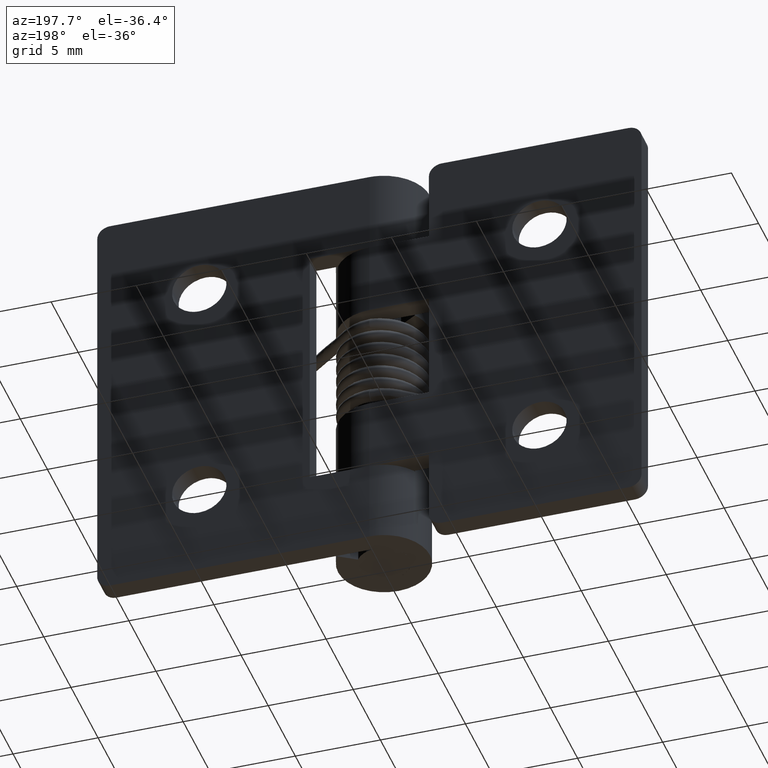
[diagram: clean part render]
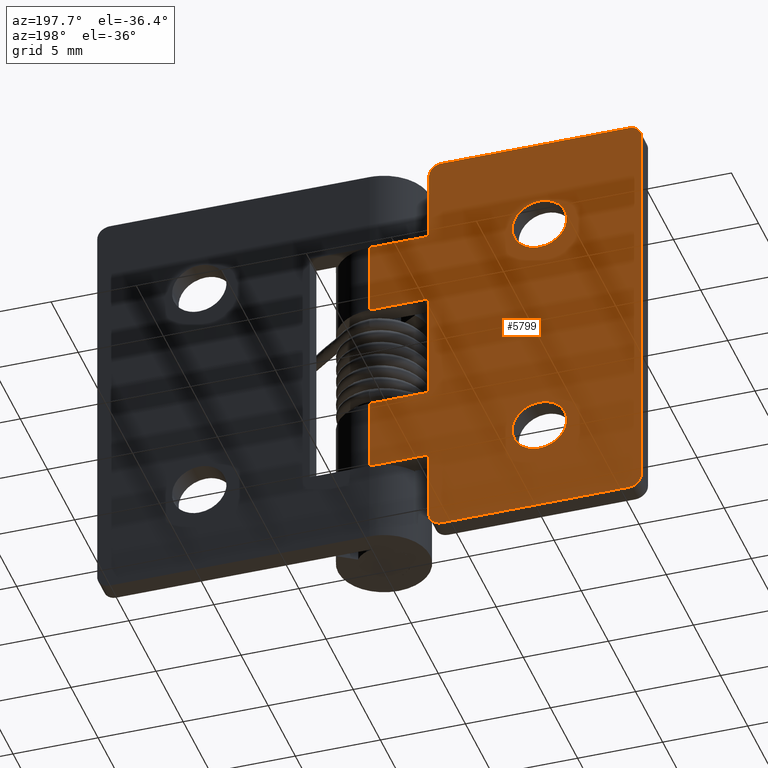
[diagram: same view with one face highlighted and labeled with its STEP entity id]
A machine part, auxiliary view. The second image highlights one B-rep face of the part: STEP entity #5799.
In plain terms, the highlighted face is a freeform B-spline surface patch.
Its self-contained STEP definition (entity closure, byte-faithful):
#4549=CARTESIAN_POINT('',(-11.588822242180971,2.700005000000000,19.311137224542691));
#4550=VERTEX_POINT('',#4549);
#4556=CARTESIAN_POINT('',(-10.000006999999901,2.700005000000000,21.099992000000199));
#4557=VERTEX_POINT('',#4556);
#4558=CARTESIAN_POINT('',(-11.588822242180969,2.700005000000000,19.311137224542691));
#4559=CARTESIAN_POINT('',(-11.600006999999897,2.700005000000000,19.405233408550380));
#4560=CARTESIAN_POINT('',(-11.600006999999900,2.700005000000000,19.499992000000201));
#4561=CARTESIAN_POINT('',(-11.600006999999898,2.700005000000000,21.099992000000206));
#4562=CARTESIAN_POINT('',(-10.000006999999901,2.700005000000000,21.099992000000199));
#4570=(BOUNDED_CURVE()B_SPLINE_CURVE(2,(#4558,#4559,#4560,#4561,#4562),.UNSPECIFIED.,.F.,.U.)B_SPLINE_CURVE_WITH_KNOTS((3,2,3),(0.229562473514219,0.250000000000000,0.500000000000000),.UNSPECIFIED.)CURVE()GEOMETRIC_REPRESENTATION_ITEM()RATIONAL_B_SPLINE_CURVE((0.956026754185093,0.976055948331978,1.0,0.707106781186548,1.0))REPRESENTATION_ITEM(''));
#4571=EDGE_CURVE('',#4550,#4557,#4570,.T.);
#4573=CARTESIAN_POINT('',(-8.402991322528347,2.700005000000000,19.597669663312150));
#4574=VERTEX_POINT('',#4573);
#4575=CARTESIAN_POINT('',(-10.000006999999901,2.700005000000000,21.099992000000199));
#4576=CARTESIAN_POINT('',(-8.494877293056886,2.700005000000000,21.099992000000203));
#4577=CARTESIAN_POINT('',(-8.402991322528347,2.700005000000000,19.597669663312157));
#4585=(BOUNDED_CURVE()B_SPLINE_CURVE(2,(#4575,#4576,#4577),.UNSPECIFIED.,.F.,.U.)B_SPLINE_CURVE_WITH_KNOTS((3,3),(0.500000000000000,0.739332962229828),.UNSPECIFIED.)CURVE()GEOMETRIC_REPRESENTATION_ITEM()RATIONAL_B_SPLINE_CURVE((1.0,0.719603993297389,0.976072041647183))REPRESENTATION_ITEM(''));
#4586=EDGE_CURVE('',#4557,#4574,#4585,.T.);
#4660=CARTESIAN_POINT('',(-10.000006999999901,2.700005000000000,17.899992000000200));
#4661=VERTEX_POINT('',#4660);
#4662=CARTESIAN_POINT('',(-8.402991322528347,2.700005000000000,19.597669663312157));
#4663=CARTESIAN_POINT('',(-8.400006999999899,2.700005000000000,19.548876421334285));
#4664=CARTESIAN_POINT('',(-8.400006999999899,2.700005000000000,19.499992000000201));
#4665=CARTESIAN_POINT('',(-8.400006999999901,2.700005000000000,17.899992000000196));
#4666=CARTESIAN_POINT('',(-10.000006999999901,2.700005000000000,17.899992000000200));
#4674=(BOUNDED_CURVE()B_SPLINE_CURVE(2,(#4662,#4663,#4664,#4665,#4666),.UNSPECIFIED.,.F.,.U.)B_SPLINE_CURVE_WITH_KNOTS((3,2,3),(0.739332962229828,0.750000000000000,1.0),.UNSPECIFIED.)CURVE()GEOMETRIC_REPRESENTATION_ITEM()RATIONAL_B_SPLINE_CURVE((0.976072041647183,0.987502787889158,1.0,0.707106781186548,1.0))REPRESENTATION_ITEM(''));
#4675=EDGE_CURVE('',#4574,#4661,#4674,.T.);
#4677=CARTESIAN_POINT('',(-10.000006999999901,2.700005000000000,17.899992000000200));
#4678=CARTESIAN_POINT('',(-11.421086241510022,2.700005000000000,17.899992000000200));
#4679=CARTESIAN_POINT('',(-11.588822242180969,2.700005000000000,19.311137224542691));
#4687=(BOUNDED_CURVE()B_SPLINE_CURVE(2,(#4677,#4678,#4679),.UNSPECIFIED.,.F.,.U.)B_SPLINE_CURVE_WITH_KNOTS((3,3),(0.0,0.229562473514219),.UNSPECIFIED.)CURVE()GEOMETRIC_REPRESENTATION_ITEM()RATIONAL_B_SPLINE_CURVE((1.0,0.731050832854570,0.956026754185093))REPRESENTATION_ITEM(''));
#4688=EDGE_CURVE('',#4661,#4550,#4687,.T.);
#4735=CARTESIAN_POINT('',(-11.588822242180971,2.700005000000000,5.311145224542686));
#4736=VERTEX_POINT('',#4735);
#4742=CARTESIAN_POINT('',(-10.000006999999901,2.700005000000000,7.100000000000200));
#4743=VERTEX_POINT('',#4742);
#4744=CARTESIAN_POINT('',(-11.588822242180971,2.700005000000000,5.311145224542686));
#4745=CARTESIAN_POINT('',(-11.600006999999897,2.700005000000000,5.405241408550374));
#4746=CARTESIAN_POINT('',(-11.600006999999900,2.700005000000000,5.500000000000200));
#4747=CARTESIAN_POINT('',(-11.600006999999898,2.700005000000000,7.100000000000200));
#4748=CARTESIAN_POINT('',(-10.000006999999901,2.700005000000000,7.100000000000200));
#4756=(BOUNDED_CURVE()B_SPLINE_CURVE(2,(#4744,#4745,#4746,#4747,#4748),.UNSPECIFIED.,.F.,.U.)B_SPLINE_CURVE_WITH_KNOTS((3,2,3),(0.229562473514219,0.250000000000000,0.500000000000000),.UNSPECIFIED.)CURVE()GEOMETRIC_REPRESENTATION_ITEM()RATIONAL_B_SPLINE_CURVE((0.956026754185092,0.976055948331978,1.0,0.707106781186548,1.0))REPRESENTATION_ITEM(''));
#4757=EDGE_CURVE('',#4736,#4743,#4756,.T.);
#4759=CARTESIAN_POINT('',(-8.402991322528349,2.700005000000000,5.597677663312155));
#4760=VERTEX_POINT('',#4759);
#4761=CARTESIAN_POINT('',(-10.000006999999901,2.700005000000000,7.100000000000200));
#4762=CARTESIAN_POINT('',(-8.494877293056886,2.700005000000000,7.100000000000199));
#4763=CARTESIAN_POINT('',(-8.402991322528349,2.700005000000000,5.597677663312155));
#4771=(BOUNDED_CURVE()B_SPLINE_CURVE(2,(#4761,#4762,#4763),.UNSPECIFIED.,.F.,.U.)B_SPLINE_CURVE_WITH_KNOTS((3,3),(0.500000000000000,0.739332962229828),.UNSPECIFIED.)CURVE()GEOMETRIC_REPRESENTATION_ITEM()RATIONAL_B_SPLINE_CURVE((1.0,0.719603993297389,0.976072041647183))REPRESENTATION_ITEM(''));
#4772=EDGE_CURVE('',#4743,#4760,#4771,.T.);
#4846=CARTESIAN_POINT('',(-10.000006999999901,2.700005000000000,3.900000000000200));
#4847=VERTEX_POINT('',#4846);
#4848=CARTESIAN_POINT('',(-8.402991322528349,2.700005000000000,5.597677663312155));
#4849=CARTESIAN_POINT('',(-8.400006999999899,2.700005000000000,5.548884421334284));
#4850=CARTESIAN_POINT('',(-8.400006999999899,2.700005000000000,5.500000000000200));
#4851=CARTESIAN_POINT('',(-8.400006999999901,2.700005000000000,3.900000000000200));
#4852=CARTESIAN_POINT('',(-10.000006999999901,2.700005000000000,3.900000000000200));
#4860=(BOUNDED_CURVE()B_SPLINE_CURVE(2,(#4848,#4849,#4850,#4851,#4852),.UNSPECIFIED.,.F.,.U.)B_SPLINE_CURVE_WITH_KNOTS((3,2,3),(0.739332962229828,0.750000000000000,1.0),.UNSPECIFIED.)CURVE()GEOMETRIC_REPRESENTATION_ITEM()RATIONAL_B_SPLINE_CURVE((0.976072041647182,0.987502787889158,1.0,0.707106781186548,1.0))REPRESENTATION_ITEM(''));
#4861=EDGE_CURVE('',#4760,#4847,#4860,.T.);
#4863=CARTESIAN_POINT('',(-10.000006999999901,2.700005000000000,3.900000000000200));
#4864=CARTESIAN_POINT('',(-11.421086241510020,2.700004999999999,3.900000000000200));
#4865=CARTESIAN_POINT('',(-11.588822242180969,2.700005000000000,5.311145224542686));
#4873=(BOUNDED_CURVE()B_SPLINE_CURVE(2,(#4863,#4864,#4865),.UNSPECIFIED.,.F.,.U.)B_SPLINE_CURVE_WITH_KNOTS((3,3),(0.0,0.229562473514219),.UNSPECIFIED.)CURVE()GEOMETRIC_REPRESENTATION_ITEM()RATIONAL_B_SPLINE_CURVE((1.0,0.731050832854570,0.956026754185093))REPRESENTATION_ITEM(''));
#4874=EDGE_CURVE('',#4847,#4736,#4873,.T.);
#4911=CARTESIAN_POINT('',(-3.500000000000000,2.700005000000000,24.249984999999999));
#4912=VERTEX_POINT('',#4911);
#4918=CARTESIAN_POINT('',(-4.250000000000000,2.700005000000000,24.999984999999999));
#4919=VERTEX_POINT('',#4918);
#4920=CARTESIAN_POINT('',(-3.500000000000000,2.700005000000000,24.249984999999999));
#4921=CARTESIAN_POINT('',(-3.499999999999999,2.700005000000000,24.999984999999995));
#4922=CARTESIAN_POINT('',(-4.250000000000000,2.700005000000000,24.999984999999999));
#4930=(BOUNDED_CURVE()B_SPLINE_CURVE(2,(#4920,#4921,#4922),.UNSPECIFIED.,.F.,.U.)CURVE()GEOMETRIC_REPRESENTATION_ITEM()QUASI_UNIFORM_CURVE()RATIONAL_B_SPLINE_CURVE((1.0,0.707106781186548,1.0))REPRESENTATION_ITEM(''));
#4931=EDGE_CURVE('',#4912,#4919,#4930,.T.);
#4972=CARTESIAN_POINT('',(-4.250000000000000,2.700005000000000,0.0));
#4973=VERTEX_POINT('',#4972);
#4979=CARTESIAN_POINT('',(-3.500000000000000,2.700005000000000,0.750000000000000));
#4980=VERTEX_POINT('',#4979);
#4981=CARTESIAN_POINT('',(-4.250000000000000,2.700005000000000,0.0));
#4982=CARTESIAN_POINT('',(-3.499999999999999,2.700005000000000,0.0));
#4983=CARTESIAN_POINT('',(-3.500000000000000,2.700005000000000,0.750000000000000));
#4991=(BOUNDED_CURVE()B_SPLINE_CURVE(2,(#4981,#4982,#4983),.UNSPECIFIED.,.F.,.U.)CURVE()GEOMETRIC_REPRESENTATION_ITEM()QUASI_UNIFORM_CURVE()RATIONAL_B_SPLINE_CURVE((1.0,0.707106781186548,1.0))REPRESENTATION_ITEM(''));
#4992=EDGE_CURVE('',#4973,#4980,#4991,.T.);
#5016=CARTESIAN_POINT('',(-15.250008000000101,2.700005000000000,24.999984999999999));
#5017=VERTEX_POINT('',#5016);
#5018=CARTESIAN_POINT('',(-16.000008000000101,2.700005000000000,24.249984999999999));
#5019=VERTEX_POINT('',#5018);
#5020=CARTESIAN_POINT('',(-15.250008000000101,2.700005000000000,24.999984999999999));
#5021=CARTESIAN_POINT('',(-16.000008000000097,2.700005000000000,24.999984999999995));
#5022=CARTESIAN_POINT('',(-16.000008000000101,2.700005000000000,24.249984999999999));
#5030=(BOUNDED_CURVE()B_SPLINE_CURVE(2,(#5020,#5021,#5022),.UNSPECIFIED.,.F.,.U.)CURVE()GEOMETRIC_REPRESENTATION_ITEM()QUASI_UNIFORM_CURVE()RATIONAL_B_SPLINE_CURVE((1.0,0.707106781186548,1.0))REPRESENTATION_ITEM(''));
#5031=EDGE_CURVE('',#5017,#5019,#5030,.T.);
#5077=CARTESIAN_POINT('',(-16.000008000000101,2.700005000000000,0.750000000000000));
#5078=VERTEX_POINT('',#5077);
#5079=CARTESIAN_POINT('',(-15.250008000000101,2.700005000000000,0.0));
#5080=VERTEX_POINT('',#5079);
#5081=CARTESIAN_POINT('',(-16.000008000000101,2.700005000000000,0.750000000000000));
#5082=CARTESIAN_POINT('',(-16.000008000000097,2.700005000000000,0.0));
#5083=CARTESIAN_POINT('',(-15.250008000000101,2.700005000000000,0.0));
#5091=(BOUNDED_CURVE()B_SPLINE_CURVE(2,(#5081,#5082,#5083),.UNSPECIFIED.,.F.,.U.)CURVE()GEOMETRIC_REPRESENTATION_ITEM()QUASI_UNIFORM_CURVE()RATIONAL_B_SPLINE_CURVE((1.0,0.707106781186548,1.0))REPRESENTATION_ITEM(''));
#5092=EDGE_CURVE('',#5078,#5080,#5091,.T.);
#5131=CARTESIAN_POINT('',(0.0,2.700005000000000,9.249992000000001));
#5132=VERTEX_POINT('',#5131);
#5152=CARTESIAN_POINT('',(-3.500000000000000,2.700005000000000,9.249992000000001));
#5153=VERTEX_POINT('',#5152);
#5154=CARTESIAN_POINT('',(0.0,2.700005000000000,9.249992000000001));
#5155=CARTESIAN_POINT('',(-3.500000000000000,2.700005000000000,9.249992000000001));
#5156=QUASI_UNIFORM_CURVE('',1,(#5154,#5155),.UNSPECIFIED.,.F.,.U.);
#5157=EDGE_CURVE('',#5132,#5153,#5156,.T.);
#5207=CARTESIAN_POINT('',(0.0,2.700005000000000,15.749992000000001));
#5208=VERTEX_POINT('',#5207);
#5265=CARTESIAN_POINT('',(-3.500000000000000,2.700005000000000,15.749992000000001));
#5266=VERTEX_POINT('',#5265);
#5272=CARTESIAN_POINT('',(-3.500000000000000,2.700005000000000,15.749992000000001));
#5273=CARTESIAN_POINT('',(0.0,2.700005000000000,15.749992000000001));
#5274=QUASI_UNIFORM_CURVE('',1,(#5272,#5273),.UNSPECIFIED.,.F.,.U.);
#5275=EDGE_CURVE('',#5266,#5208,#5274,.T.);
#5291=CARTESIAN_POINT('',(-3.500000000000000,2.700005000000000,9.249992000000001));
#5292=CARTESIAN_POINT('',(-3.500000000000000,2.700005000000000,15.749992000000001));
#5293=QUASI_UNIFORM_CURVE('',1,(#5291,#5292),.UNSPECIFIED.,.F.,.U.);
#5294=EDGE_CURVE('',#5153,#5266,#5293,.T.);
#5305=CARTESIAN_POINT('',(-3.500000000000000,2.700005000000000,20.099997999999999));
#5306=VERTEX_POINT('',#5305);
#5307=CARTESIAN_POINT('',(-3.500000000000000,2.700005000000000,24.249984999999999));
#5308=CARTESIAN_POINT('',(-3.500000000000000,2.700005000000000,20.099997999999999));
#5309=QUASI_UNIFORM_CURVE('',1,(#5307,#5308),.UNSPECIFIED.,.F.,.U.);
#5310=EDGE_CURVE('',#4912,#5306,#5309,.T.);
#5333=CARTESIAN_POINT('',(0.0,2.700005000000000,20.099997999999999));
#5334=VERTEX_POINT('',#5333);
#5335=CARTESIAN_POINT('',(-3.500000000000000,2.700005000000000,20.099997999999999));
#5336=CARTESIAN_POINT('',(0.0,2.700005000000000,20.099997999999999));
#5337=QUASI_UNIFORM_CURVE('',1,(#5335,#5336),.UNSPECIFIED.,.F.,.U.);
#5338=EDGE_CURVE('',#5306,#5334,#5337,.T.);
#5405=CARTESIAN_POINT('',(0.0,2.700005000000000,4.899994000000000));
#5406=VERTEX_POINT('',#5405);
#5461=CARTESIAN_POINT('',(-3.500000000000000,2.700005000000000,4.899994000000000));
#5462=VERTEX_POINT('',#5461);
#5468=CARTESIAN_POINT('',(0.0,2.700005000000000,4.899994000000000));
#5469=CARTESIAN_POINT('',(-3.500000000000000,2.700005000000000,4.899994000000000));
#5470=QUASI_UNIFORM_CURVE('',1,(#5468,#5469),.UNSPECIFIED.,.F.,.U.);
#5471=EDGE_CURVE('',#5406,#5462,#5470,.T.);
#5607=CARTESIAN_POINT('',(0.0,2.700005000000000,4.899994000000000));
#5608=CARTESIAN_POINT('',(0.0,2.700005000000000,9.249992000000001));
#5609=QUASI_UNIFORM_CURVE('',1,(#5607,#5608),.UNSPECIFIED.,.F.,.U.);
#5610=EDGE_CURVE('',#5406,#5132,#5609,.T.);
#5638=CARTESIAN_POINT('',(0.0,2.700005000000000,15.749992000000001));
#5639=CARTESIAN_POINT('',(0.0,2.700005000000000,20.099997999999999));
#5640=QUASI_UNIFORM_CURVE('',1,(#5638,#5639),.UNSPECIFIED.,.F.,.U.);
#5641=EDGE_CURVE('',#5208,#5334,#5640,.T.);
#5660=CARTESIAN_POINT('',(-15.250008000000101,2.700005000000000,0.0));
#5661=CARTESIAN_POINT('',(-4.250000000000000,2.700005000000000,0.0));
#5662=QUASI_UNIFORM_CURVE('',1,(#5660,#5661),.UNSPECIFIED.,.F.,.U.);
#5663=EDGE_CURVE('',#5080,#4973,#5662,.T.);
#5679=CARTESIAN_POINT('',(-15.250008000000101,2.700005000000000,24.999984999999999));
#5680=CARTESIAN_POINT('',(-4.250000000000000,2.700005000000000,24.999984999999999));
#5681=QUASI_UNIFORM_CURVE('',1,(#5679,#5680),.UNSPECIFIED.,.F.,.U.);
#5682=EDGE_CURVE('',#5017,#4919,#5681,.T.);
#5694=CARTESIAN_POINT('',(-16.000008000000101,2.700005000000000,0.750000000000000));
#5695=CARTESIAN_POINT('',(-16.000008000000101,2.700005000000000,24.249984999999999));
#5696=QUASI_UNIFORM_CURVE('',1,(#5694,#5695),.UNSPECIFIED.,.F.,.U.);
#5697=EDGE_CURVE('',#5078,#5019,#5696,.T.);
#5714=CARTESIAN_POINT('',(-3.500000000000000,2.700005000000000,4.899994000000000));
#5715=CARTESIAN_POINT('',(-3.500000000000000,2.700005000000000,0.750000000000000));
#5716=QUASI_UNIFORM_CURVE('',1,(#5714,#5715),.UNSPECIFIED.,.F.,.U.);
#5717=EDGE_CURVE('',#5462,#4980,#5716,.T.);
#5764=CARTESIAN_POINT('',(-16.799208068195728,2.700005000000000,26.248733967613209));
#5765=CARTESIAN_POINT('',(-16.799208068195728,2.700005000000000,-1.248749861682338));
#5766=CARTESIAN_POINT('',(0.799200783451724,2.700005000000000,26.248733967613209));
#5767=CARTESIAN_POINT('',(0.799200783451724,2.700005000000000,-1.248749861682338));
#5768=B_SPLINE_SURFACE_WITH_KNOTS('',1,1,((#5764,#5766),(#5765,#5767)),.UNSPECIFIED.,.F.,.F.,.U.,(2,2),(2,2),(0.0,27.497483829295540),(0.0,17.598408851647449),.UNSPECIFIED.);
#5769=ORIENTED_EDGE('',*,*,#4931,.F.);
#5770=ORIENTED_EDGE('',*,*,#5310,.T.);
#5771=ORIENTED_EDGE('',*,*,#5338,.T.);
#5772=ORIENTED_EDGE('',*,*,#5641,.F.);
#5773=ORIENTED_EDGE('',*,*,#5275,.F.);
#5774=ORIENTED_EDGE('',*,*,#5294,.F.);
#5775=ORIENTED_EDGE('',*,*,#5157,.F.);
#5776=ORIENTED_EDGE('',*,*,#5610,.F.);
#5777=ORIENTED_EDGE('',*,*,#5471,.T.);
#5778=ORIENTED_EDGE('',*,*,#5717,.T.);
#5779=ORIENTED_EDGE('',*,*,#4992,.F.);
#5780=ORIENTED_EDGE('',*,*,#5663,.F.);
#5781=ORIENTED_EDGE('',*,*,#5092,.F.);
#5782=ORIENTED_EDGE('',*,*,#5697,.T.);
#5783=ORIENTED_EDGE('',*,*,#5031,.F.);
#5784=ORIENTED_EDGE('',*,*,#5682,.T.);
#5785=EDGE_LOOP('',(#5769,#5770,#5771,#5772,#5773,#5774,#5775,#5776,#5777,#5778,#5779,#5780,#5781,#5782,#5783,#5784));
#5786=FACE_OUTER_BOUND('',#5785,.T.);
#5787=ORIENTED_EDGE('',*,*,#4772,.F.);
#5788=ORIENTED_EDGE('',*,*,#4757,.F.);
#5789=ORIENTED_EDGE('',*,*,#4874,.F.);
#5790=ORIENTED_EDGE('',*,*,#4861,.F.);
#5791=EDGE_LOOP('',(#5787,#5788,#5789,#5790));
#5792=FACE_BOUND('',#5791,.T.);
#5793=ORIENTED_EDGE('',*,*,#4586,.F.);
#5794=ORIENTED_EDGE('',*,*,#4571,.F.);
#5795=ORIENTED_EDGE('',*,*,#4688,.F.);
#5796=ORIENTED_EDGE('',*,*,#4675,.F.);
#5797=EDGE_LOOP('',(#5793,#5794,#5795,#5796));
#5798=FACE_BOUND('',#5797,.T.);
#5799=ADVANCED_FACE('',(#5786,#5792,#5798),#5768,.F.);